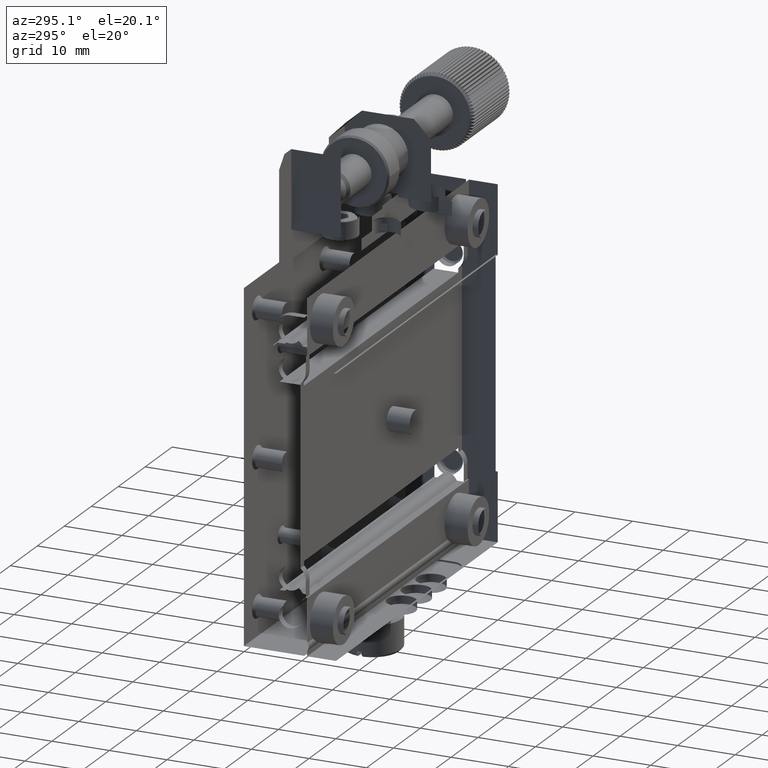
[diagram: clean part render]
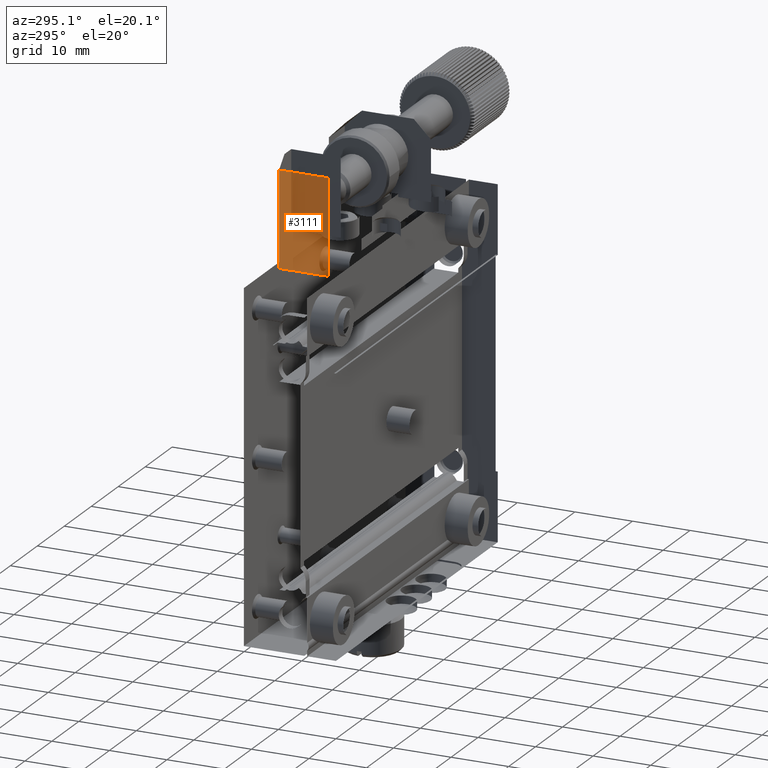
[diagram: same view with one face highlighted and labeled with its STEP entity id]
A machine part, auxiliary view. The second image highlights one B-rep face of the part: STEP entity #3111.
In plain terms, the highlighted planar face has unit normal (-1, 0, 0).
Its self-contained STEP definition (entity closure, byte-faithful):
#249 = DIRECTION ( 'NONE',  ( 0.000000000000000000, 0.000000000000000000, 1.000000000000000000 ) ) ;
#556 = LINE ( 'NONE', #6057, #9851 ) ;
#598 = CARTESIAN_POINT ( 'NONE',  ( -19.50000000000000000, 6.200000000000001954, 30.00000000000000000 ) ) ;
#1008 = CARTESIAN_POINT ( 'NONE',  ( -19.50000000000000000, 6.200000000000001954, 46.50000000000000711 ) ) ;
#1747 = PLANE ( 'NONE',  #2685 ) ;
#2301 = ORIENTED_EDGE ( 'NONE', *, *, #13843, .F. ) ;
#2416 = VERTEX_POINT ( 'NONE', #12996 ) ;
#2441 = LINE ( 'NONE', #9196, #12290 ) ;
#2685 = AXIS2_PLACEMENT_3D ( 'NONE', #598, #11246, #249 ) ;
#3111 = ADVANCED_FACE ( 'NONE', ( #12403 ), #1747, .F. ) ;
#3729 = VERTEX_POINT ( 'NONE', #7852 ) ;
#3921 = DIRECTION ( 'NONE',  ( 0.000000000000000000, 1.000000000000000000, -0.000000000000000000 ) ) ;
#4464 = DIRECTION ( 'NONE',  ( -0.000000000000000000, -1.000000000000000000, -0.000000000000000000 ) ) ;
#6057 = CARTESIAN_POINT ( 'NONE',  ( -19.50000000000000355, 14.80000000000000071, 0.000000000000000000 ) ) ;
#7737 = VECTOR ( 'NONE', #3921, 1000.000000000000000 ) ;
#7852 = CARTESIAN_POINT ( 'NONE',  ( -19.50000000000000355, 14.80000000000000071, 46.50000000000000000 ) ) ;
#7861 = DIRECTION ( 'NONE',  ( 0.000000000000000000, -0.000000000000000000, 1.000000000000000000 ) ) ;
#9060 = CARTESIAN_POINT ( 'NONE',  ( -19.50000000000000355, 6.200000000000001954, 30.00000000000000000 ) ) ;
#9196 = CARTESIAN_POINT ( 'NONE',  ( -19.50000000000000355, 6.200000000000001954, 0.000000000000000000 ) ) ;
#9319 = VERTEX_POINT ( 'NONE', #14453 ) ;
#9851 = VECTOR ( 'NONE', #11656, 1000.000000000000000 ) ;
#11122 = LINE ( 'NONE', #12289, #14389 ) ;
#11246 = DIRECTION ( 'NONE',  ( -1.000000000000000000, 0.000000000000000000, 0.000000000000000000 ) ) ;
#11656 = DIRECTION ( 'NONE',  ( 0.000000000000000000, -0.000000000000000000, 1.000000000000000000 ) ) ;
#11883 = VERTEX_POINT ( 'NONE', #9060 ) ;
#12289 = CARTESIAN_POINT ( 'NONE',  ( -19.50000000000000355, 16.00000000000000000, 30.00000000000000000 ) ) ;
#12290 = VECTOR ( 'NONE', #7861, 1000.000000000000000 ) ;
#12403 = FACE_OUTER_BOUND ( 'NONE', #13899, .T. ) ;
#12996 = CARTESIAN_POINT ( 'NONE',  ( -19.50000000000000355, 6.200000000000001954, 46.50000000000000000 ) ) ;
#13072 = EDGE_CURVE ( 'NONE', #2416, #3729, #17501, .T. ) ;
#13843 = EDGE_CURVE ( 'NONE', #11883, #2416, #2441, .T. ) ;
#13899 = EDGE_LOOP ( 'NONE', ( #2301, #14008, #14714, #15327 ) ) ;
#14008 = ORIENTED_EDGE ( 'NONE', *, *, #17559, .F. ) ;
#14389 = VECTOR ( 'NONE', #4464, 1000.000000000000000 ) ;
#14453 = CARTESIAN_POINT ( 'NONE',  ( -19.50000000000000355, 14.80000000000000071, 30.00000000000000000 ) ) ;
#14714 = ORIENTED_EDGE ( 'NONE', *, *, #16488, .T. ) ;
#15327 = ORIENTED_EDGE ( 'NONE', *, *, #13072, .F. ) ;
#16488 = EDGE_CURVE ( 'NONE', #9319, #3729, #556, .T. ) ;
#17501 = LINE ( 'NONE', #1008, #7737 ) ;
#17559 = EDGE_CURVE ( 'NONE', #9319, #11883, #11122, .T. ) ;